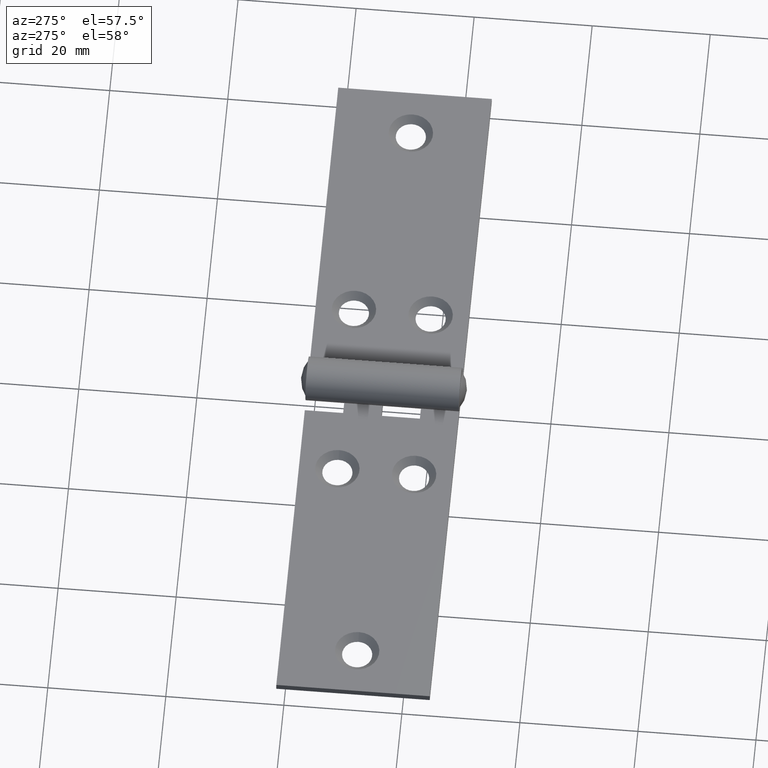
[diagram: clean part render]
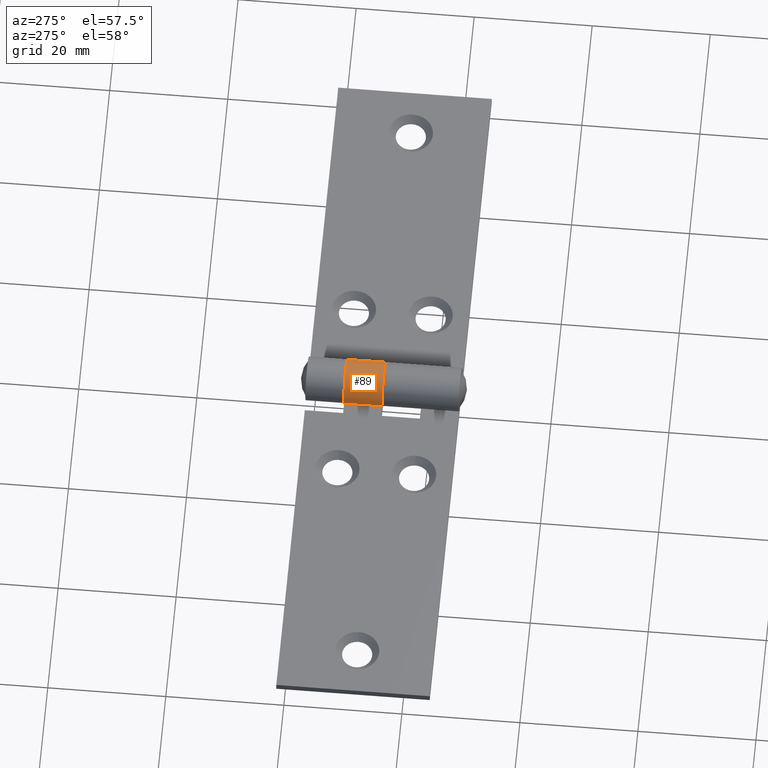
[diagram: same view with one face highlighted and labeled with its STEP entity id]
A machine part, auxiliary view. The second image highlights one B-rep face of the part: STEP entity #89.
In plain terms, the highlighted cylindrical surface (edge-blend (fillet) strip) has radius 3.7 mm, axis along (-0, -1, -0).
Its self-contained STEP definition (entity closure, byte-faithful):
#89 = ADVANCED_FACE ( 'NONE', ( #6022 ), #10051, .T. ) ;
#570 = VERTEX_POINT ( 'NONE', #2996 ) ;
#747 = DIRECTION ( 'NONE',  ( 0.000000000000000000, 0.000000000000000000, 1.000000000000000000 ) ) ;
#769 = CIRCLE ( 'NONE', #4006, 3.700000000000001954 ) ;
#873 = DIRECTION ( 'NONE',  ( -0.000000000000000000, -1.000000000000000000, -0.000000000000000000 ) ) ;
#1295 = DIRECTION ( 'NONE',  ( -1.000000000000000000, 2.602085213965209163E-16, 0.000000000000000000 ) ) ;
#1642 = VECTOR ( 'NONE', #873, 1000.000000000000000 ) ;
#1922 = CARTESIAN_POINT ( 'NONE',  ( 57.18397443193425289, 13.00000000000000000, 1.300000000000000711 ) ) ;
#2176 = CARTESIAN_POINT ( 'NONE',  ( 60.00000000000000000, -1.734723475976807094E-15, 3.700000000000000178 ) ) ;
#2996 = CARTESIAN_POINT ( 'NONE',  ( 57.18397443193425289, 6.500000000000000000, 1.300000000000001155 ) ) ;
#3174 = ORIENTED_EDGE ( 'NONE', *, *, #6047, .T. ) ;
#3264 = DIRECTION ( 'NONE',  ( 2.602085213965210149E-16, 1.000000000000000000, -0.000000000000000000 ) ) ;
#3280 = ORIENTED_EDGE ( 'NONE', *, *, #7740, .F. ) ;
#3602 = EDGE_LOOP ( 'NONE', ( #3280, #5129, #7495, #3174 ) ) ;
#3911 = VERTEX_POINT ( 'NONE', #8878 ) ;
#4006 = AXIS2_PLACEMENT_3D ( 'NONE', #2176, #3264, #1295 ) ;
#4062 = CARTESIAN_POINT ( 'NONE',  ( 60.00000000000000000, 13.00000000000000000, 2.508278806333708124E-18 ) ) ;
#4187 = DIRECTION ( 'NONE',  ( -0.000000000000000000, -1.000000000000000000, -0.000000000000000000 ) ) ;
#4462 = EDGE_CURVE ( 'NONE', #570, #8557, #5599, .T. ) ;
#4657 = CARTESIAN_POINT ( 'NONE',  ( 60.00000000000000000, 6.500000000000000000, 0.000000000000000000 ) ) ;
#5129 = ORIENTED_EDGE ( 'NONE', *, *, #4462, .F. ) ;
#5240 = DIRECTION ( 'NONE',  ( 0.000000000000000000, 1.000000000000000000, 0.000000000000000000 ) ) ;
#5599 = CIRCLE ( 'NONE', #6061, 3.700000000000001066 ) ;
#5983 = LINE ( 'NONE', #4062, #8624 ) ;
#6022 = FACE_OUTER_BOUND ( 'NONE', #3602, .T. ) ;
#6047 = EDGE_CURVE ( 'NONE', #3911, #7765, #769, .T. ) ;
#6061 = AXIS2_PLACEMENT_3D ( 'NONE', #7757, #5240, #747 ) ;
#7495 = ORIENTED_EDGE ( 'NONE', *, *, #10495, .T. ) ;
#7740 = EDGE_CURVE ( 'NONE', #8557, #7765, #5983, .T. ) ;
#7757 = CARTESIAN_POINT ( 'NONE',  ( 60.00000000000000000, 6.500000000000000000, 3.700000000000000178 ) ) ;
#7765 = VERTEX_POINT ( 'NONE', #9505 ) ;
#8418 = LINE ( 'NONE', #1922, #1642 ) ;
#8557 = VERTEX_POINT ( 'NONE', #4657 ) ;
#8624 = VECTOR ( 'NONE', #4187, 1000.000000000000000 ) ;
#8878 = CARTESIAN_POINT ( 'NONE',  ( 57.18397443193425289, -1.001969626695620877E-15, 1.300000000000001155 ) ) ;
#8938 = DIRECTION ( 'NONE',  ( -0.000000000000000000, -1.000000000000000000, -0.000000000000000000 ) ) ;
#9505 = CARTESIAN_POINT ( 'NONE',  ( 60.00000000000000000, -1.249000902703299136E-15, 0.000000000000000000 ) ) ;
#10051 = CYLINDRICAL_SURFACE ( 'NONE', #10442, 3.700000000000001066 ) ;
#10442 = AXIS2_PLACEMENT_3D ( 'NONE', #10515, #8938, #11486 ) ;
#10495 = EDGE_CURVE ( 'NONE', #570, #3911, #8418, .T. ) ;
#10515 = CARTESIAN_POINT ( 'NONE',  ( 60.00000000000000000, 13.00000000000000000, 3.700000000000000178 ) ) ;
#11486 = DIRECTION ( 'NONE',  ( 0.000000000000000000, 0.000000000000000000, -1.000000000000000000 ) ) ;